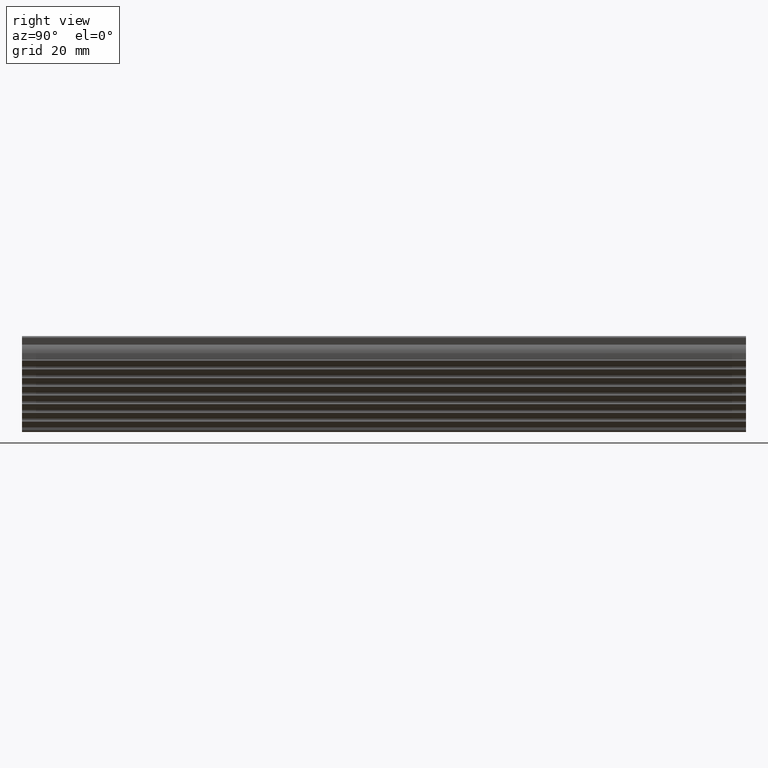
[diagram: clean part render]
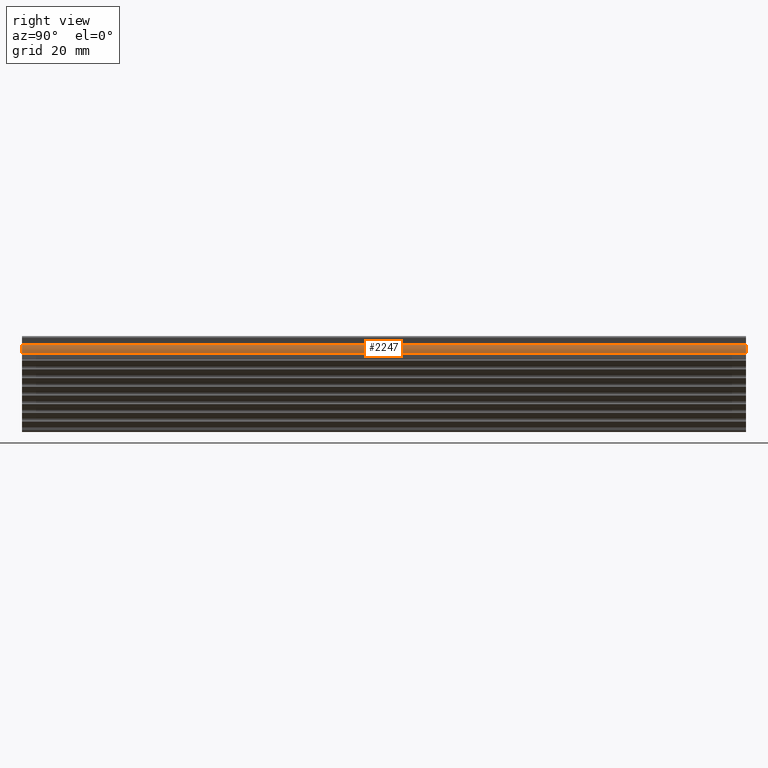
[diagram: same view with one face highlighted and labeled with its STEP entity id]
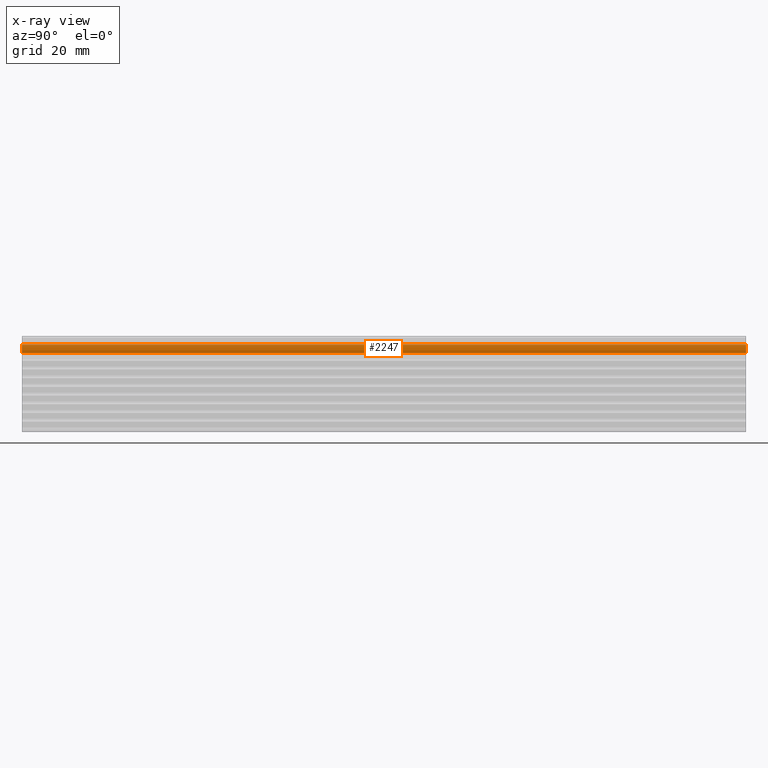
[diagram: x-ray of the same camera — body ghosted, the highlighted face saturated]
A machine part, right view. The second image highlights one B-rep face of the part: STEP entity #2247.
The next image is the same camera in x-ray: the body ghosted, the highlighted face saturated — about 0% of this face is hidden behind the body in this view.
In plain terms, the highlighted face is a freeform B-spline surface patch.
Its self-contained STEP definition (entity closure, byte-faithful):
#777=CARTESIAN_POINT('',(3.750000000000000,0.0,-3.350000000000035));
#778=VERTEX_POINT('',#777);
#784=CARTESIAN_POINT('',(3.014889893381595,0.0,-0.976281813958963));
#785=VERTEX_POINT('',#784);
#786=CARTESIAN_POINT('',(3.750000000000000,0.0,-3.350000000000035));
#787=CARTESIAN_POINT('',(3.750000000000000,0.0,-2.049313816630205));
#788=CARTESIAN_POINT('',(3.014889893381592,0.0,-0.976281813958967));
#796=(BOUNDED_CURVE()B_SPLINE_CURVE(2,(#786,#787,#788),.UNSPECIFIED.,.F.,.U.)CURVE()GEOMETRIC_REPRESENTATION_ITEM()QUASI_UNIFORM_CURVE()RATIONAL_B_SPLINE_CURVE((1.0,0.955241797697964,1.0))REPRESENTATION_ITEM(''));
#797=EDGE_CURVE('',#778,#785,#796,.T.);
#1005=CARTESIAN_POINT('',(3.014889893381595,200.0,-0.976281813958963));
#1006=VERTEX_POINT('',#1005);
#1012=CARTESIAN_POINT('',(3.750000000000000,200.0,-3.350000000000035));
#1013=VERTEX_POINT('',#1012);
#1014=CARTESIAN_POINT('',(3.750000000000000,200.0,-3.350000000000035));
#1015=CARTESIAN_POINT('',(3.750000000000000,199.999999999999970,-2.049313816630205));
#1016=CARTESIAN_POINT('',(3.014889893381592,200.0,-0.976281813958967));
#1024=(BOUNDED_CURVE()B_SPLINE_CURVE(2,(#1014,#1015,#1016),.UNSPECIFIED.,.F.,.U.)CURVE()GEOMETRIC_REPRESENTATION_ITEM()QUASI_UNIFORM_CURVE()RATIONAL_B_SPLINE_CURVE((1.0,0.955241797697964,1.0))REPRESENTATION_ITEM(''));
#1025=EDGE_CURVE('',#1013,#1006,#1024,.T.);
#2213=CARTESIAN_POINT('',(3.014889893381595,200.0,-0.976281813958963));
#2214=CARTESIAN_POINT('',(3.014889893381595,0.0,-0.976281813958963));
#2215=QUASI_UNIFORM_CURVE('',1,(#2213,#2214),.UNSPECIFIED.,.F.,.U.);
#2216=EDGE_CURVE('',#1006,#785,#2215,.T.);
#2223=CARTESIAN_POINT('',(2.943648235015632,205.000000000000060,-0.875499715705189));
#2224=CARTESIAN_POINT('',(2.943648235015632,-5.125000000000000,-0.875499715705189));
#2225=CARTESIAN_POINT('',(3.790688073084310,204.999999999999970,-2.037170728512874));
#2226=CARTESIAN_POINT('',(3.790688073084310,-5.125000000000000,-2.037170728512874));
#2227=CARTESIAN_POINT('',(3.748162240238845,205.000000000000030,-3.474232864543827));
#2228=CARTESIAN_POINT('',(3.748162240238845,-5.125000000000000,-3.474232864543827));
#2236=(BOUNDED_SURFACE()B_SPLINE_SURFACE(1,2,((#2223,#2225,#2227),(#2224,#2226,#2228)),.UNSPECIFIED.,.F.,.F.,.U.)B_SPLINE_SURFACE_WITH_KNOTS((2,2),(3,3),(0.0,210.125000000000110),(0.0,2.795744071429568),.UNSPECIFIED.)GEOMETRIC_REPRESENTATION_ITEM()RATIONAL_B_SPLINE_SURFACE(((0.998744441803999,0.941625780994705,0.991798101617459),(0.998744441803999,0.941625780994705,0.991798101617459)))REPRESENTATION_ITEM('')SURFACE());
#2237=ORIENTED_EDGE('',*,*,#797,.F.);
#2238=CARTESIAN_POINT('',(3.750000000000000,200.0,-3.350000000000035));
#2239=CARTESIAN_POINT('',(3.750000000000000,0.0,-3.350000000000035));
#2240=QUASI_UNIFORM_CURVE('',1,(#2238,#2239),.UNSPECIFIED.,.F.,.U.);
#2241=EDGE_CURVE('',#1013,#778,#2240,.T.);
#2242=ORIENTED_EDGE('',*,*,#2241,.F.);
#2243=ORIENTED_EDGE('',*,*,#1025,.T.);
#2244=ORIENTED_EDGE('',*,*,#2216,.T.);
#2245=EDGE_LOOP('',(#2237,#2242,#2243,#2244));
#2246=FACE_OUTER_BOUND('',#2245,.T.);
#2247=ADVANCED_FACE('',(#2246),#2236,.T.);